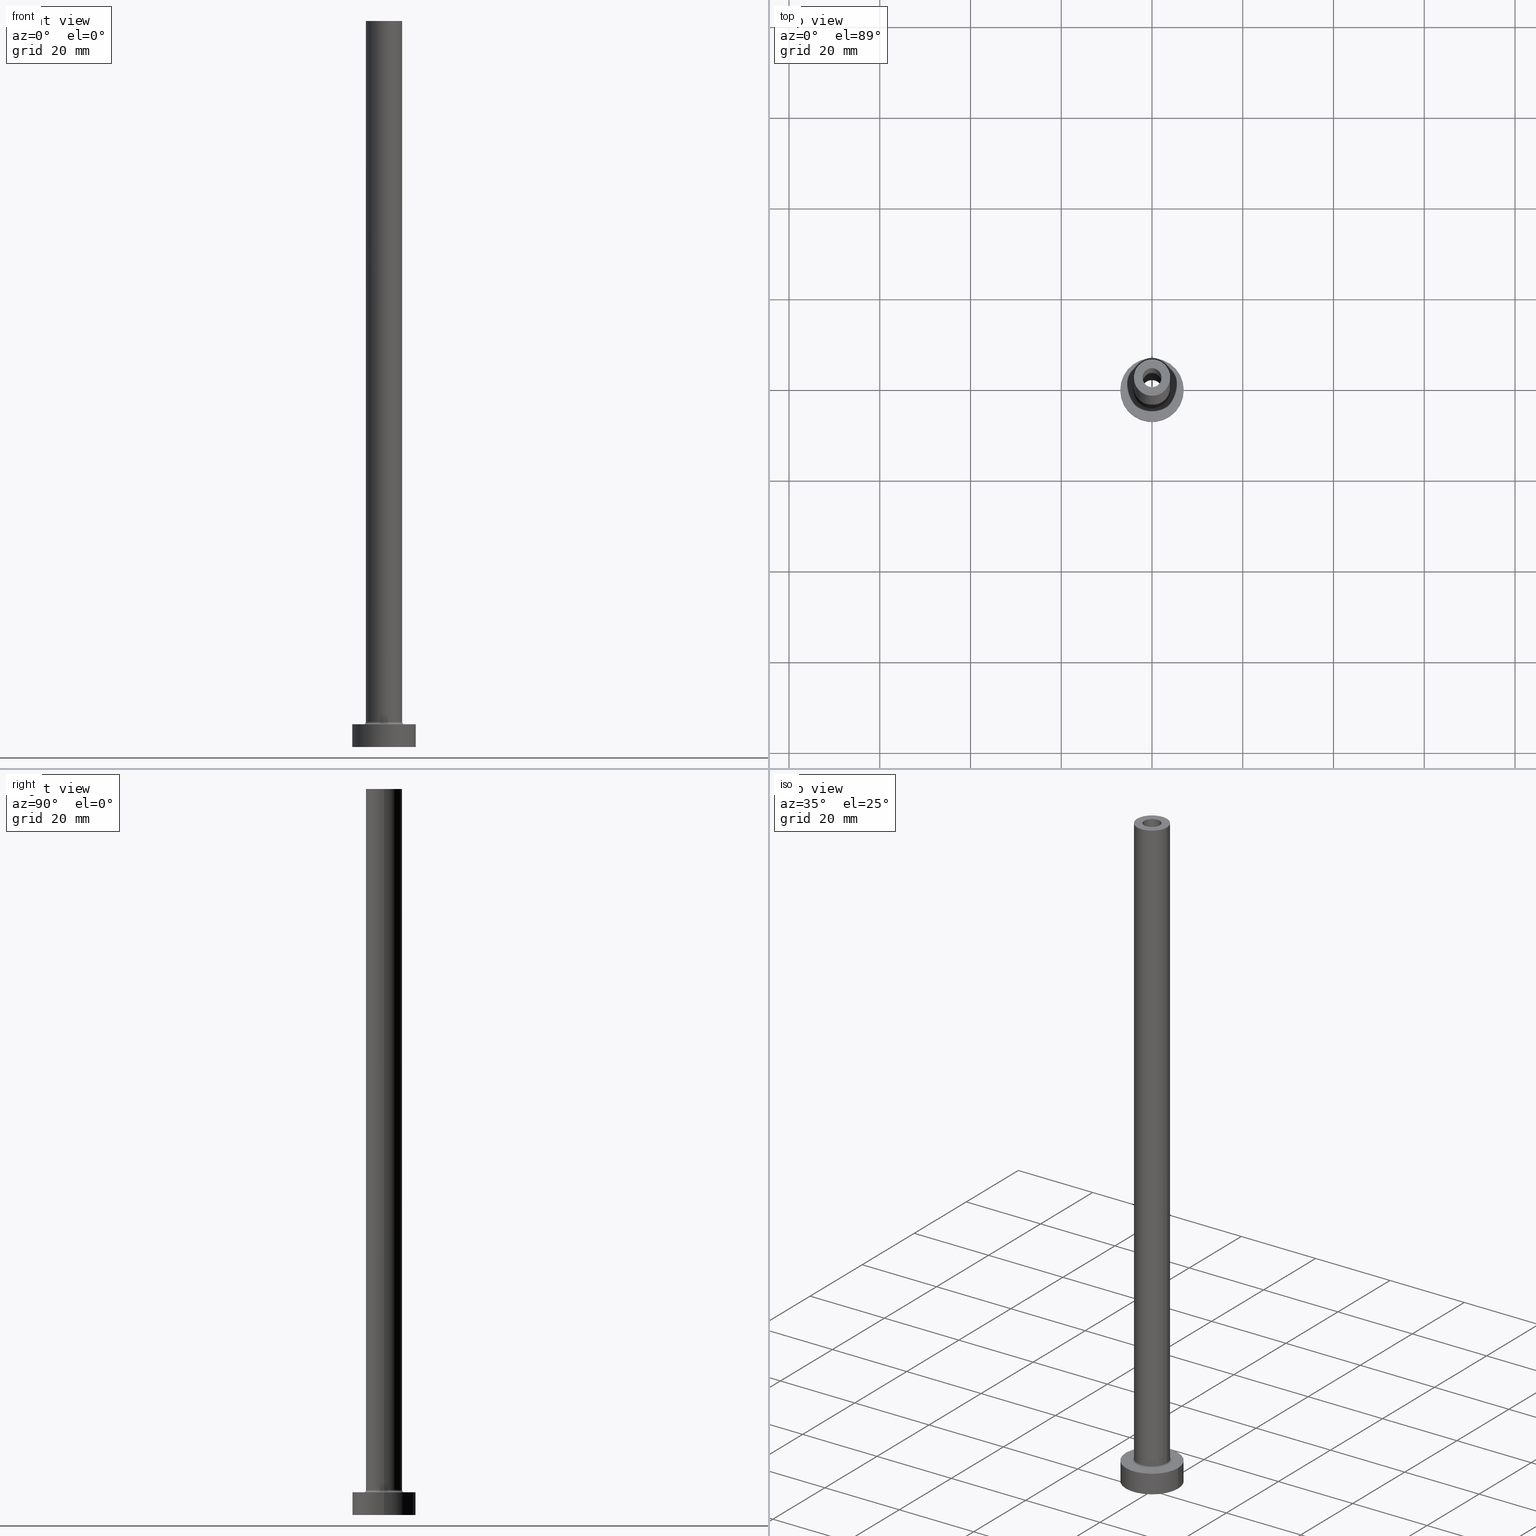
[diagram: canonical four-view strip — front | top / right | iso, engineering-drawing reading convention]
A machine part, canonical four-view strip (front | top / right | iso — engineering-drawing reading convention). The complete STEP part file that produces these views, byte-faithful:
ISO-10303-21;
HEADER;
FILE_DESCRIPTION (( 'STEP AP203' ),
    '1' );
FILE_NAME ('e7b2.STEP',
    '2023-02-13T17:33:14',
    ( '' ),
    ( '' ),
    'SwSTEP 2.0',
    'SolidWorks 2019',
    '' );
FILE_SCHEMA (( 'CONFIG_CONTROL_DESIGN' ));
ENDSEC;

DATA;
#1 = CARTESIAN_POINT ( 'NONE',  ( 0.000000000000000000, 0.000000000000000000, 5.500000000000005329 ) ) ;
#2 = DIRECTION ( 'NONE',  ( 1.000000000000000000, 0.000000000000000000, 0.000000000000000000 ) ) ;
#3 = CARTESIAN_POINT ( 'NONE',  ( 0.000000000000000000, 0.000000000000000000, 5.000000000000000000 ) ) ;
#4 = CIRCLE ( 'NONE', #395, 2.100000000000000089 ) ;
#5 = CARTESIAN_POINT ( 'NONE',  ( 2.100000000000000089, 2.571758278209441464E-16, 160.0000000000000000 ) ) ;
#6 = FACE_OUTER_BOUND ( 'NONE', #16, .T. ) ;
#7 = DIRECTION ( 'NONE',  ( 1.000000000000000000, 0.000000000000000000, -0.000000000000000000 ) ) ;
#8 = VERTEX_POINT ( 'NONE', #326 ) ;
#9 = ORIENTED_EDGE ( 'NONE', *, *, #154, .T. ) ;
#10 = ADVANCED_FACE ( 'NONE', ( #134 ), #350, .F. ) ;
#11 = AXIS2_PLACEMENT_3D ( 'NONE', #198, #375, #133 ) ;
#12 = APPROVAL_DATE_TIME ( #114, #325 ) ;
#13 = DIRECTION ( 'NONE',  ( -1.000000000000000000, 0.000000000000000000, 0.000000000000000000 ) ) ;
#14 = EDGE_CURVE ( 'NONE', #52, #228, #408, .T. ) ;
#15 = AXIS2_PLACEMENT_3D ( 'NONE', #124, #192, #25 ) ;
#16 = EDGE_LOOP ( 'NONE', ( #155, #44, #361, #365 ) ) ;
#17 = AXIS2_PLACEMENT_3D ( 'NONE', #33, #97, #265 ) ;
#18 = CARTESIAN_POINT ( 'NONE',  ( 0.000000000000000000, 0.000000000000000000, 5.000000000000000000 ) ) ;
#19 = LINE ( 'NONE', #299, #120 ) ;
#20 = UNCERTAINTY_MEASURE_WITH_UNIT (LENGTH_MEASURE( 1.000000000000000082E-05 ), #389, 'distance_accuracy_value', 'NONE');
#21 = CARTESIAN_POINT ( 'NONE',  ( 4.500000000000000888, 0.000000000000000000, 5.000000000000002665 ) ) ;
#22 = ORIENTED_EDGE ( 'NONE', *, *, #234, .T. ) ;
#23 = PLANE ( 'NONE',  #400 ) ;
#24 = CIRCLE ( 'NONE', #411, 4.000000000000000000 ) ;
#25 = DIRECTION ( 'NONE',  ( 1.000000000000000000, 0.000000000000000000, 0.000000000000000000 ) ) ;
#26 = ORIENTED_EDGE ( 'NONE', *, *, #106, .F. ) ;
#27 = CARTESIAN_POINT ( 'NONE',  ( 0.000000000000000000, 0.000000000000000000, 115.0000000000000000 ) ) ;
#28 = VERTEX_POINT ( 'NONE', #108 ) ;
#29 = CARTESIAN_POINT ( 'NONE',  ( -4.500000000000000888, 5.510910596163088569E-16, 5.000000000000002665 ) ) ;
#30 = ORIENTED_EDGE ( 'NONE', *, *, #110, .T. ) ;
#31 = CARTESIAN_POINT ( 'NONE',  ( 0.000000000000000000, 0.000000000000000000, 5.000000000000000000 ) ) ;
#32 = PRODUCT_DEFINITION ( 'NEZN�M�', '', #167, #263 ) ;
#33 = CARTESIAN_POINT ( 'NONE',  ( 0.000000000000000000, 0.000000000000000000, 115.0000000000000000 ) ) ;
#34 = DIRECTION ( 'NONE',  ( 1.000000000000000000, 0.000000000000000000, 0.000000000000000000 ) ) ;
#35 = ORIENTED_EDGE ( 'NONE', *, *, #119, .T. ) ;
#36 = DATE_AND_TIME ( #346, #237 ) ;
#37 = DIRECTION ( 'NONE',  ( -1.000000000000000000, 1.224646799147351482E-16, 0.000000000000000000 ) ) ;
#38 = EDGE_LOOP ( 'NONE', ( #417, #355, #353, #220 ) ) ;
#39 = EDGE_LOOP ( 'NONE', ( #438, #225 ) ) ;
#40 = DATE_TIME_ROLE ( 'classification_date' ) ;
#41 = APPROVAL ( #138, 'NEUR�EN�' ) ;
#42 = LINE ( 'NONE', #149, #195 ) ;
#43 = AXIS2_PLACEMENT_3D ( 'NONE', #173, #319, #461 ) ;
#44 = ORIENTED_EDGE ( 'NONE', *, *, #366, .T. ) ;
#45 = CARTESIAN_POINT ( 'NONE',  ( 0.000000000000000000, 0.000000000000000000, 0.000000000000000000 ) ) ;
#46 = ORIENTED_EDGE ( 'NONE', *, *, #154, .F. ) ;
#47 = PLANE ( 'NONE',  #423 ) ;
#48 = EDGE_CURVE ( 'NONE', #210, #318, #330, .T. ) ;
#49 = AXIS2_PLACEMENT_3D ( 'NONE', #3, #215, #396 ) ;
#50 =( GEOMETRIC_REPRESENTATION_CONTEXT ( 3 ) GLOBAL_UNCERTAINTY_ASSIGNED_CONTEXT ( ( #20 ) ) GLOBAL_UNIT_ASSIGNED_CONTEXT ( ( #389, #147, #109 ) ) REPRESENTATION_CONTEXT ( 'NONE', 'WORKASPACE' ) );
#51 = DIRECTION ( 'NONE',  ( -0.000000000000000000, -0.000000000000000000, -1.000000000000000000 ) ) ;
#52 = VERTEX_POINT ( 'NONE', #426 ) ;
#53 = ADVANCED_FACE ( 'NONE', ( #244 ), #452, .T. ) ;
#54 = PERSON_AND_ORGANIZATION ( #295, #56 ) ;
#55 = ORIENTED_EDGE ( 'NONE', *, *, #119, .F. ) ;
#56 = ORGANIZATION ( 'NEUR�EN�', 'NEUR�EN�', '' ) ;
#57 = LINE ( 'NONE', #92, #82 ) ;
#58 = CYLINDRICAL_SURFACE ( 'NONE', #105, 2.250000000000000000 ) ;
#59 = FACE_BOUND ( 'NONE', #246, .T. ) ;
#60 = CC_DESIGN_DATE_AND_TIME_ASSIGNMENT ( #36, #40, ( #204 ) ) ;
#61 = FACE_BOUND ( 'NONE', #407, .T. ) ;
#62 = CIRCLE ( 'NONE', #15, 7.000000000000000000 ) ;
#63 = DIRECTION ( 'NONE',  ( 1.000000000000000000, 0.000000000000000000, 0.000000000000000000 ) ) ;
#64 = EDGE_CURVE ( 'NONE', #269, #282, #453, .T. ) ;
#65 = CARTESIAN_POINT ( 'NONE',  ( 0.000000000000000000, 0.000000000000000000, 0.000000000000000000 ) ) ;
#66 = VERTEX_POINT ( 'NONE', #188 ) ;
#67 = APPLICATION_CONTEXT ( 'configuration controlled 3d designs of mechanical parts and assemblies' ) ;
#68 = DIRECTION ( 'NONE',  ( 0.000000000000000000, 0.000000000000000000, 1.000000000000000000 ) ) ;
#69 = SECURITY_CLASSIFICATION_LEVEL ( 'unclassified' ) ;
#70 = CIRCLE ( 'NONE', #178, 4.000000000000000000 ) ;
#71 = ORIENTED_EDGE ( 'NONE', *, *, #458, .T. ) ;
#72 = PRODUCT ( 'e7b2', 'e7b2', '', ( #145 ) ) ;
#73 = PERSON_AND_ORGANIZATION ( #295, #56 ) ;
#74 = EDGE_CURVE ( 'NONE', #78, #318, #19, .T. ) ;
#75 = DIRECTION ( 'NONE',  ( 1.000000000000000000, 0.000000000000000000, 0.000000000000000000 ) ) ;
#76 = EDGE_LOOP ( 'NONE', ( #35, #93 ) ) ;
#77 = PERSON_AND_ORGANIZATION ( #295, #56 ) ;
#78 = VERTEX_POINT ( 'NONE', #442 ) ;
#79 = DIRECTION ( 'NONE',  ( 0.000000000000000000, 0.000000000000000000, -1.000000000000000000 ) ) ;
#80 = CIRCLE ( 'NONE', #143, 0.5000000000000004441 ) ;
#81 = VERTEX_POINT ( 'NONE', #89 ) ;
#82 = VECTOR ( 'NONE', #338, 1000.000000000000000 ) ;
#83 = ADVANCED_FACE ( 'NONE', ( #369 ), #58, .F. ) ;
#84 = CARTESIAN_POINT ( 'NONE',  ( 2.100000000000000089, 2.571758278209441464E-16, 115.0000000000000000 ) ) ;
#85 = DIRECTION ( 'NONE',  ( 1.000000000000000000, 0.000000000000000000, -0.000000000000000000 ) ) ;
#86 = AXIS2_PLACEMENT_3D ( 'NONE', #163, #233, #409 ) ;
#87 = CARTESIAN_POINT ( 'NONE',  ( 0.000000000000000000, 0.000000000000000000, 160.0000000000000000 ) ) ;
#88 = APPLICATION_CONTEXT ( 'configuration controlled 3d designs of mechanical parts and assemblies' ) ;
#89 = CARTESIAN_POINT ( 'NONE',  ( -7.000000000000000000, 0.000000000000000000, 5.000000000000000000 ) ) ;
#90 = AXIS2_PLACEMENT_3D ( 'NONE', #309, #454, #371 ) ;
#91 = CARTESIAN_POINT ( 'NONE',  ( 4.000000000000000000, 4.898587196589412829E-16, 160.0000000000000000 ) ) ;
#92 = CARTESIAN_POINT ( 'NONE',  ( 2.250000000000000000, 2.755455298081544285E-16, 121.3639610306789365 ) ) ;
#93 = ORIENTED_EDGE ( 'NONE', *, *, #171, .T. ) ;
#94 = CYLINDRICAL_SURFACE ( 'NONE', #11, 4.000000000000000000 ) ;
#95 = CC_DESIGN_DATE_AND_TIME_ASSIGNMENT ( #391, #293, ( #32 ) ) ;
#96 = AXIS2_PLACEMENT_3D ( 'NONE', #413, #450, #307 ) ;
#97 = DIRECTION ( 'NONE',  ( 0.000000000000000000, 0.000000000000000000, 1.000000000000000000 ) ) ;
#98 = DIRECTION ( 'NONE',  ( 0.000000000000000000, 0.000000000000000000, 1.000000000000000000 ) ) ;
#99 = DIRECTION ( 'NONE',  ( -0.000000000000000000, -0.000000000000000000, -1.000000000000000000 ) ) ;
#100 = EDGE_LOOP ( 'NONE', ( #266, #30, #226, #382 ) ) ;
#101 = DIRECTION ( 'NONE',  ( 1.000000000000000000, 0.000000000000000000, 0.000000000000000000 ) ) ;
#102 = CARTESIAN_POINT ( 'NONE',  ( 0.000000000000000000, 0.000000000000000000, 160.0000000000000000 ) ) ;
#103 = APPROVAL_ROLE ( '' ) ;
#104 = ORIENTED_EDGE ( 'NONE', *, *, #140, .F. ) ;
#105 = AXIS2_PLACEMENT_3D ( 'NONE', #122, #261, #13 ) ;
#106 = EDGE_CURVE ( 'NONE', #401, #377, #156, .T. ) ;
#107 = CALENDAR_DATE ( 2023, 13, 2 ) ;
#108 = CARTESIAN_POINT ( 'NONE',  ( -4.000000000000000000, 0.000000000000000000, 160.0000000000000000 ) ) ;
#109 =( NAMED_UNIT ( * ) SI_UNIT ( $, .STERADIAN. ) SOLID_ANGLE_UNIT ( ) );
#110 = EDGE_CURVE ( 'NONE', #8, #401, #80, .T. ) ;
#111 = EDGE_LOOP ( 'NONE', ( #104, #22, #207, #340 ) ) ;
#112 = CC_DESIGN_APPROVAL ( #41, ( #32 ) ) ;
#113 = COORDINATED_UNIVERSAL_TIME_OFFSET ( 1, 0, .AHEAD. ) ;
#114 = DATE_AND_TIME ( #440, #332 ) ;
#115 = VERTEX_POINT ( 'NONE', #460 ) ;
#116 = CC_DESIGN_PERSON_AND_ORGANIZATION_ASSIGNMENT ( #73, #425, ( #72 ) ) ;
#117 = AXIS2_PLACEMENT_3D ( 'NONE', #102, #193, #313 ) ;
#118 = CARTESIAN_POINT ( 'NONE',  ( 0.000000000000000000, 0.000000000000000000, 115.0000000000000000 ) ) ;
#119 = EDGE_CURVE ( 'NONE', #28, #247, #24, .T. ) ;
#120 = VECTOR ( 'NONE', #298, 1000.000000000000000 ) ;
#121 = CARTESIAN_POINT ( 'NONE',  ( 0.000000000000000000, 0.000000000000000000, 160.0000000000000000 ) ) ;
#122 = CARTESIAN_POINT ( 'NONE',  ( 0.000000000000000000, 0.000000000000000000, 121.3639610306789365 ) ) ;
#123 = APPROVAL_PERSON_ORGANIZATION ( #77, #393, #103 ) ;
#124 = CARTESIAN_POINT ( 'NONE',  ( 0.000000000000000000, 0.000000000000000000, 0.000000000000000000 ) ) ;
#125 = DIRECTION ( 'NONE',  ( 0.000000000000000000, 0.000000000000000000, 1.000000000000000000 ) ) ;
#126 = ORIENTED_EDGE ( 'NONE', *, *, #366, .F. ) ;
#127 = DIRECTION ( 'NONE',  ( -0.000000000000000000, -0.000000000000000000, -1.000000000000000000 ) ) ;
#128 = AXIS2_PLACEMENT_3D ( 'NONE', #241, #320, #288 ) ;
#129 = EDGE_CURVE ( 'NONE', #81, #418, #284, .T. ) ;
#130 = DIRECTION ( 'NONE',  ( 0.000000000000000000, 0.000000000000000000, 1.000000000000000000 ) ) ;
#131 = DIRECTION ( 'NONE',  ( -1.000000000000000000, 0.000000000000000000, 0.000000000000000000 ) ) ;
#132 = DIRECTION ( 'NONE',  ( -0.000000000000000000, -0.000000000000000000, -1.000000000000000000 ) ) ;
#133 = DIRECTION ( 'NONE',  ( -1.000000000000000000, 0.000000000000000000, 0.000000000000000000 ) ) ;
#134 = FACE_OUTER_BOUND ( 'NONE', #100, .T. ) ;
#135 = ORIENTED_EDGE ( 'NONE', *, *, #140, .T. ) ;
#136 = DIRECTION ( 'NONE',  ( 0.000000000000000000, 0.000000000000000000, 1.000000000000000000 ) ) ;
#137 = ORIENTED_EDGE ( 'NONE', *, *, #362, .T. ) ;
#138 = APPROVAL_STATUS ( 'not_yet_approved' ) ;
#139 = DIRECTION ( 'NONE',  ( 1.000000000000000000, 0.000000000000000000, 0.000000000000000000 ) ) ;
#140 = EDGE_CURVE ( 'NONE', #418, #81, #217, .T. ) ;
#141 = PERSON_AND_ORGANIZATION ( #295, #56 ) ;
#142 = LINE ( 'NONE', #283, #321 ) ;
#143 = AXIS2_PLACEMENT_3D ( 'NONE', #206, #347, #37 ) ;
#144 = VECTOR ( 'NONE', #79, 1000.000000000000000 ) ;
#145 = MECHANICAL_CONTEXT ( 'NONE', #67, 'mechanical' ) ;
#146 = PLANE ( 'NONE',  #356 ) ;
#147 =( NAMED_UNIT ( * ) PLANE_ANGLE_UNIT ( ) SI_UNIT ( $, .RADIAN. ) );
#148 = ADVANCED_FACE ( 'NONE', ( #280 ), #272, .F. ) ;
#149 = CARTESIAN_POINT ( 'NONE',  ( 7.000000000000000000, 8.572527594031473190E-16, 5.000000000000000000 ) ) ;
#150 = EDGE_LOOP ( 'NONE', ( #300, #236 ) ) ;
#151 = CALENDAR_DATE ( 2023, 13, 2 ) ;
#152 = AXIS2_PLACEMENT_3D ( 'NONE', #431, #182, #289 ) ;
#153 = AXIS2_PLACEMENT_3D ( 'NONE', #317, #386, #34 ) ;
#154 = EDGE_CURVE ( 'NONE', #314, #8, #403, .T. ) ;
#155 = ORIENTED_EDGE ( 'NONE', *, *, #458, .F. ) ;
#156 = CIRCLE ( 'NONE', #294, 4.500000000000000888 ) ;
#157 = EDGE_CURVE ( 'NONE', #115, #329, #62, .T. ) ;
#158 = ORIENTED_EDGE ( 'NONE', *, *, #14, .F. ) ;
#159 = DIRECTION ( 'NONE',  ( -1.000000000000000000, 0.000000000000000000, 0.000000000000000000 ) ) ;
#160 = DIRECTION ( 'NONE',  ( 0.000000000000000000, 0.000000000000000000, -1.000000000000000000 ) ) ;
#161 = AXIS2_PLACEMENT_3D ( 'NONE', #203, #285, #242 ) ;
#162 = AXIS2_PLACEMENT_3D ( 'NONE', #65, #260, #63 ) ;
#163 = CARTESIAN_POINT ( 'NONE',  ( 0.000000000000000000, 0.000000000000000000, 160.0000000000000000 ) ) ;
#164 = CARTESIAN_POINT ( 'NONE',  ( 4.000000000000000000, 4.898587196589412829E-16, 5.500000000000005329 ) ) ;
#165 = EDGE_LOOP ( 'NONE', ( #333, #158 ) ) ;
#166 = CARTESIAN_POINT ( 'NONE',  ( 2.250000000000000000, 2.755455298081544285E-16, 115.0000000000000000 ) ) ;
#167 = PRODUCT_DEFINITION_FORMATION_WITH_SPECIFIED_SOURCE ( 'LIBOVOLN�', '', #72, .NOT_KNOWN. ) ;
#168 = DIRECTION ( 'NONE',  ( 0.000000000000000000, 0.000000000000000000, 1.000000000000000000 ) ) ;
#169 = LINE ( 'NONE', #214, #305 ) ;
#170 = DIRECTION ( 'NONE',  ( 0.000000000000000000, 0.000000000000000000, -1.000000000000000000 ) ) ;
#171 = EDGE_CURVE ( 'NONE', #247, #28, #259, .T. ) ;
#172 = COORDINATED_UNIVERSAL_TIME_OFFSET ( 1, 0, .AHEAD. ) ;
#173 = CARTESIAN_POINT ( 'NONE',  ( 0.000000000000000000, 0.000000000000000000, 5.000000000000000000 ) ) ;
#174 = CARTESIAN_POINT ( 'NONE',  ( 0.000000000000000000, 0.000000000000000000, 0.000000000000000000 ) ) ;
#175 = DIRECTION ( 'NONE',  ( 1.000000000000000000, 0.000000000000000000, 0.000000000000000000 ) ) ;
#176 = ORIENTED_EDGE ( 'NONE', *, *, #249, .T. ) ;
#177 = ADVANCED_FACE ( 'NONE', ( #348 ), #279, .T. ) ;
#178 = AXIS2_PLACEMENT_3D ( 'NONE', #240, #238, #354 ) ;
#179 = DIRECTION ( 'NONE',  ( 0.000000000000000000, 0.000000000000000000, 1.000000000000000000 ) ) ;
#180 = ORIENTED_EDGE ( 'NONE', *, *, #331, .F. ) ;
#181 = CARTESIAN_POINT ( 'NONE',  ( 0.000000000000000000, 0.000000000000000000, 0.000000000000000000 ) ) ;
#182 = DIRECTION ( 'NONE',  ( 0.000000000000000000, 0.000000000000000000, 1.000000000000000000 ) ) ;
#183 = CC_DESIGN_APPROVAL ( #393, ( #167 ) ) ;
#184 = DIRECTION ( 'NONE',  ( 1.000000000000000000, 0.000000000000000000, 0.000000000000000000 ) ) ;
#185 = EDGE_CURVE ( 'NONE', #28, #8, #142, .T. ) ;
#186 = EDGE_LOOP ( 'NONE', ( #224, #419, #291, #137 ) ) ;
#187 = ADVANCED_FACE ( 'NONE', ( #211, #352 ), #146, .T. ) ;
#188 = CARTESIAN_POINT ( 'NONE',  ( 2.100000000000000089, 2.571758278209441464E-16, 160.0000000000000000 ) ) ;
#189 = CIRCLE ( 'NONE', #360, 4.500000000000000888 ) ;
#190 = FACE_OUTER_BOUND ( 'NONE', #39, .T. ) ;
#191 = CARTESIAN_POINT ( 'NONE',  ( 0.000000000000000000, 0.000000000000000000, 121.3639610306789365 ) ) ;
#192 = DIRECTION ( 'NONE',  ( 0.000000000000000000, 0.000000000000000000, 1.000000000000000000 ) ) ;
#193 = DIRECTION ( 'NONE',  ( 0.000000000000000000, 0.000000000000000000, -1.000000000000000000 ) ) ;
#194 = EDGE_LOOP ( 'NONE', ( #364, #71, #180, #381 ) ) ;
#195 = VECTOR ( 'NONE', #254, 1000.000000000000000 ) ;
#196 = EDGE_CURVE ( 'NONE', #377, #401, #189, .T. ) ;
#197 = DIRECTION ( 'NONE',  ( 0.000000000000000000, 0.000000000000000000, 1.000000000000000000 ) ) ;
#198 = CARTESIAN_POINT ( 'NONE',  ( 0.000000000000000000, 0.000000000000000000, 160.0000000000000000 ) ) ;
#199 = ADVANCED_FACE ( 'NONE', ( #358, #439 ), #47, .F. ) ;
#200 = DATE_AND_TIME ( #107, #387 ) ;
#201 = EDGE_LOOP ( 'NONE', ( #212, #451, #176, #392 ) ) ;
#202 = AXIS2_PLACEMENT_3D ( 'NONE', #405, #130, #335 ) ;
#203 = CARTESIAN_POINT ( 'NONE',  ( 0.000000000000000000, 0.000000000000000000, 5.500000000000005329 ) ) ;
#204 = SECURITY_CLASSIFICATION ( '', '', #69 ) ;
#205 = COORDINATED_UNIVERSAL_TIME_OFFSET ( 1, 0, .AHEAD. ) ;
#206 = CARTESIAN_POINT ( 'NONE',  ( -4.500000000000000888, 5.510910596163089556E-16, 5.500000000000005329 ) ) ;
#207 = ORIENTED_EDGE ( 'NONE', *, *, #157, .T. ) ;
#208 = PERSON_AND_ORGANIZATION ( #295, #56 ) ;
#209 = DIRECTION ( 'NONE',  ( 0.000000000000000000, 0.000000000000000000, 1.000000000000000000 ) ) ;
#210 = VERTEX_POINT ( 'NONE', #84 ) ;
#211 = FACE_BOUND ( 'NONE', #232, .T. ) ;
#212 = ORIENTED_EDGE ( 'NONE', *, *, #296, .F. ) ;
#213 = ADVANCED_FACE ( 'NONE', ( #218 ), #250, .T. ) ;
#214 = CARTESIAN_POINT ( 'NONE',  ( -7.000000000000000000, 0.000000000000000000, 5.000000000000000000 ) ) ;
#215 = DIRECTION ( 'NONE',  ( 0.000000000000000000, 0.000000000000000000, 1.000000000000000000 ) ) ;
#216 = ORIENTED_EDGE ( 'NONE', *, *, #185, .T. ) ;
#217 = CIRCLE ( 'NONE', #152, 7.000000000000000000 ) ;
#218 = FACE_OUTER_BOUND ( 'NONE', #186, .T. ) ;
#219 = LINE ( 'NONE', #327, #144 ) ;
#220 = ORIENTED_EDGE ( 'NONE', *, *, #249, .F. ) ;
#221 = CYLINDRICAL_SURFACE ( 'NONE', #117, 2.100000000000000089 ) ;
#222 = APPROVAL_STATUS ( 'not_yet_approved' ) ;
#223 = DIRECTION ( 'NONE',  ( 1.000000000000000000, 0.000000000000000000, 0.000000000000000000 ) ) ;
#224 = ORIENTED_EDGE ( 'NONE', *, *, #234, .F. ) ;
#225 = ORIENTED_EDGE ( 'NONE', *, *, #264, .F. ) ;
#226 = ORIENTED_EDGE ( 'NONE', *, *, #196, .F. ) ;
#227 = CARTESIAN_POINT ( 'NONE',  ( 7.000000000000000000, 8.572527594031473190E-16, 5.000000000000000000 ) ) ;
#228 = VERTEX_POINT ( 'NONE', #390 ) ;
#229 = CARTESIAN_POINT ( 'NONE',  ( 0.000000000000000000, 0.000000000000000000, 5.000000000000000000 ) ) ;
#230 = EDGE_CURVE ( 'NONE', #81, #329, #169, .T. ) ;
#231 = PLANE ( 'NONE',  #202 ) ;
#232 = EDGE_LOOP ( 'NONE', ( #370, #126 ) ) ;
#233 = DIRECTION ( 'NONE',  ( 0.000000000000000000, 0.000000000000000000, -1.000000000000000000 ) ) ;
#234 = EDGE_CURVE ( 'NONE', #418, #115, #42, .T. ) ;
#235 = PERSON_AND_ORGANIZATION_ROLE ( 'creator' ) ;
#236 = ORIENTED_EDGE ( 'NONE', *, *, #157, .F. ) ;
#237 = LOCAL_TIME ( 18, 33, 14.00000000000000000, #205 ) ;
#238 = DIRECTION ( 'NONE',  ( 0.000000000000000000, 0.000000000000000000, 1.000000000000000000 ) ) ;
#239 = VECTOR ( 'NONE', #170, 1000.000000000000000 ) ;
#240 = CARTESIAN_POINT ( 'NONE',  ( 0.000000000000000000, 0.000000000000000000, 5.500000000000005329 ) ) ;
#241 = CARTESIAN_POINT ( 'NONE',  ( 0.000000000000000000, 0.000000000000000000, 115.0000000000000000 ) ) ;
#242 = DIRECTION ( 'NONE',  ( 1.000000000000000000, 0.000000000000000000, 0.000000000000000000 ) ) ;
#243 = CALENDAR_DATE ( 2023, 13, 2 ) ;
#244 = FACE_OUTER_BOUND ( 'NONE', #394, .T. ) ;
#245 = AXIS2_PLACEMENT_3D ( 'NONE', #87, #127, #131 ) ;
#246 = EDGE_LOOP ( 'NONE', ( #276, #312 ) ) ;
#247 = VERTEX_POINT ( 'NONE', #398 ) ;
#248 = AXIS2_PLACEMENT_3D ( 'NONE', #174, #68, #2 ) ;
#249 = EDGE_CURVE ( 'NONE', #269, #228, #219, .T. ) ;
#250 = CYLINDRICAL_SURFACE ( 'NONE', #432, 7.000000000000000000 ) ;
#251 = APPROVAL_ROLE ( '' ) ;
#252 = DIRECTION ( 'NONE',  ( 0.000000000000000000, 0.000000000000000000, 1.000000000000000000 ) ) ;
#253 = SHAPE_DEFINITION_REPRESENTATION ( #435, #406 ) ;
#254 = DIRECTION ( 'NONE',  ( -0.000000000000000000, -0.000000000000000000, -1.000000000000000000 ) ) ;
#255 = ORIENTED_EDGE ( 'NONE', *, *, #415, .T. ) ;
#256 = AXIS2_PLACEMENT_3D ( 'NONE', #373, #197, #342 ) ;
#257 = ADVANCED_FACE ( 'NONE', ( #6 ), #221, .F. ) ;
#258 = DIRECTION ( 'NONE',  ( 0.000000000000000000, 0.000000000000000000, 1.000000000000000000 ) ) ;
#259 = CIRCLE ( 'NONE', #420, 4.000000000000000000 ) ;
#260 = DIRECTION ( 'NONE',  ( 0.000000000000000000, 0.000000000000000000, 1.000000000000000000 ) ) ;
#261 = DIRECTION ( 'NONE',  ( 0.000000000000000000, 0.000000000000000000, -1.000000000000000000 ) ) ;
#262 = CIRCLE ( 'NONE', #256, 2.100000000000000089 ) ;
#263 = DESIGN_CONTEXT ( 'detailed design', #88, 'design' ) ;
#264 = EDGE_CURVE ( 'NONE', #282, #269, #328, .T. ) ;
#265 = DIRECTION ( 'NONE',  ( 1.000000000000000000, 0.000000000000000000, 0.000000000000000000 ) ) ;
#266 = ORIENTED_EDGE ( 'NONE', *, *, #449, .F. ) ;
#267 = AXIS2_PLACEMENT_3D ( 'NONE', #45, #99, #457 ) ;
#268 = FACE_OUTER_BOUND ( 'NONE', #201, .T. ) ;
#269 = VERTEX_POINT ( 'NONE', #343 ) ;
#270 = DIRECTION ( 'NONE',  ( -0.000000000000000000, -0.000000000000000000, -1.000000000000000000 ) ) ;
#271 = EDGE_LOOP ( 'NONE', ( #349, #55, #216, #278 ) ) ;
#272 = TOROIDAL_SURFACE ( 'NONE', #303, 4.500000000000000888, 0.5000000000000000000 ) ;
#273 = EDGE_CURVE ( 'NONE', #228, #52, #446, .T. ) ;
#274 = CIRCLE ( 'NONE', #345, 2.100000000000000089 ) ;
#275 = DIRECTION ( 'NONE',  ( 1.000000000000000000, 0.000000000000000000, 0.000000000000000000 ) ) ;
#276 = ORIENTED_EDGE ( 'NONE', *, *, #196, .T. ) ;
#277 = APPROVAL_ROLE ( '' ) ;
#278 = ORIENTED_EDGE ( 'NONE', *, *, #449, .T. ) ;
#279 = CYLINDRICAL_SURFACE ( 'NONE', #43, 7.000000000000000000 ) ;
#280 = FACE_OUTER_BOUND ( 'NONE', #372, .T. ) ;
#281 = PERSON_AND_ORGANIZATION_ROLE ( 'creator' ) ;
#282 = VERTEX_POINT ( 'NONE', #166 ) ;
#283 = CARTESIAN_POINT ( 'NONE',  ( -4.000000000000000000, 0.000000000000000000, 160.0000000000000000 ) ) ;
#284 = CIRCLE ( 'NONE', #49, 7.000000000000000000 ) ;
#285 = DIRECTION ( 'NONE',  ( 0.000000000000000000, 0.000000000000000000, 1.000000000000000000 ) ) ;
#286 = DIRECTION ( 'NONE',  ( -1.000000000000000000, 0.000000000000000000, 0.000000000000000000 ) ) ;
#287 = PERSON_AND_ORGANIZATION ( #295, #56 ) ;
#288 = DIRECTION ( 'NONE',  ( 1.000000000000000000, 0.000000000000000000, 0.000000000000000000 ) ) ;
#289 = DIRECTION ( 'NONE',  ( 1.000000000000000000, 0.000000000000000000, 0.000000000000000000 ) ) ;
#290 = APPLICATION_PROTOCOL_DEFINITION ( 'international standard', 'config_control_design', 1994, #88 ) ;
#291 = ORIENTED_EDGE ( 'NONE', *, *, #230, .T. ) ;
#292 = CC_DESIGN_SECURITY_CLASSIFICATION ( #204, ( #167 ) ) ;
#293 = DATE_TIME_ROLE ( 'creation_date' ) ;
#294 = AXIS2_PLACEMENT_3D ( 'NONE', #18, #385, #139 ) ;
#295 = PERSON ( 'NEUR�EN�', 'NEUR�EN�', 'NEUR�EN�', ('NEUR�EN�'), ('NEUR�EN�'), ('NEUR�EN�') ) ;
#296 = EDGE_CURVE ( 'NONE', #282, #52, #57, .T. ) ;
#297 = ORIENTED_EDGE ( 'NONE', *, *, #185, .F. ) ;
#298 = DIRECTION ( 'NONE',  ( 0.000000000000000000, 0.000000000000000000, -1.000000000000000000 ) ) ;
#299 = CARTESIAN_POINT ( 'NONE',  ( -2.100000000000000089, 0.000000000000000000, 160.0000000000000000 ) ) ;
#300 = ORIENTED_EDGE ( 'NONE', *, *, #362, .F. ) ;
#301 = FACE_OUTER_BOUND ( 'NONE', #194, .T. ) ;
#302 = PRODUCT_RELATED_PRODUCT_CATEGORY ( 'detail', '', ( #72 ) ) ;
#303 = AXIS2_PLACEMENT_3D ( 'NONE', #1, #168, #101 ) ;
#304 = CYLINDRICAL_SURFACE ( 'NONE', #376, 2.250000000000000000 ) ;
#305 = VECTOR ( 'NONE', #399, 1000.000000000000000 ) ;
#306 = ORIENTED_EDGE ( 'NONE', *, *, #331, .T. ) ;
#307 = DIRECTION ( 'NONE',  ( 0.000000000000000000, 0.000000000000000000, -1.000000000000000000 ) ) ;
#308 = CC_DESIGN_PERSON_AND_ORGANIZATION_ASSIGNMENT ( #430, #235, ( #167 ) ) ;
#309 = CARTESIAN_POINT ( 'NONE',  ( 0.000000000000000000, 0.000000000000000000, 0.000000000000000000 ) ) ;
#310 = ORIENTED_EDGE ( 'NONE', *, *, #48, .T. ) ;
#311 = CARTESIAN_POINT ( 'NONE',  ( 0.000000000000000000, 0.000000000000000000, 160.0000000000000000 ) ) ;
#312 = ORIENTED_EDGE ( 'NONE', *, *, #106, .T. ) ;
#313 = DIRECTION ( 'NONE',  ( -1.000000000000000000, 0.000000000000000000, 0.000000000000000000 ) ) ;
#314 = VERTEX_POINT ( 'NONE', #164 ) ;
#315 = LOCAL_TIME ( 18, 33, 14.00000000000000000, #416 ) ;
#316 = LINE ( 'NONE', #5, #239 ) ;
#317 = CARTESIAN_POINT ( 'NONE',  ( 0.000000000000000000, 0.000000000000000000, 5.500000000000005329 ) ) ;
#318 = VERTEX_POINT ( 'NONE', #378 ) ;
#319 = DIRECTION ( 'NONE',  ( -0.000000000000000000, -0.000000000000000000, -1.000000000000000000 ) ) ;
#320 = DIRECTION ( 'NONE',  ( 0.000000000000000000, 0.000000000000000000, 1.000000000000000000 ) ) ;
#321 = VECTOR ( 'NONE', #424, 1000.000000000000000 ) ;
#322 = CIRCLE ( 'NONE', #162, 7.000000000000000000 ) ;
#323 = APPLICATION_PROTOCOL_DEFINITION ( 'international standard', 'config_control_design', 1994, #67 ) ;
#324 = APPROVAL_DATE_TIME ( #429, #41 ) ;
#325 = APPROVAL ( #222, 'NEUR�EN�' ) ;
#326 = CARTESIAN_POINT ( 'NONE',  ( -4.000000000000000000, 0.000000000000000000, 5.500000000000005329 ) ) ;
#327 = CARTESIAN_POINT ( 'NONE',  ( -2.250000000000000000, 0.000000000000000000, 121.3639610306789365 ) ) ;
#328 = CIRCLE ( 'NONE', #17, 2.250000000000000000 ) ;
#329 = VERTEX_POINT ( 'NONE', #455 ) ;
#330 = CIRCLE ( 'NONE', #128, 2.100000000000000089 ) ;
#331 = EDGE_CURVE ( 'NONE', #318, #210, #274, .T. ) ;
#332 = LOCAL_TIME ( 18, 33, 14.00000000000000000, #113 ) ;
#333 = ORIENTED_EDGE ( 'NONE', *, *, #273, .F. ) ;
#334 = CIRCLE ( 'NONE', #96, 0.5000000000000004441 ) ;
#335 = DIRECTION ( 'NONE',  ( 1.000000000000000000, 0.000000000000000000, -0.000000000000000000 ) ) ;
#336 = APPROVAL_PERSON_ORGANIZATION ( #54, #325, #251 ) ;
#337 = FACE_OUTER_BOUND ( 'NONE', #433, .T. ) ;
#338 = DIRECTION ( 'NONE',  ( 0.000000000000000000, 0.000000000000000000, -1.000000000000000000 ) ) ;
#339 = APPROVAL_PERSON_ORGANIZATION ( #287, #41, #277 ) ;
#340 = ORIENTED_EDGE ( 'NONE', *, *, #230, .F. ) ;
#341 = EDGE_CURVE ( 'NONE', #314, #377, #334, .T. ) ;
#342 = DIRECTION ( 'NONE',  ( 1.000000000000000000, 0.000000000000000000, 0.000000000000000000 ) ) ;
#343 = CARTESIAN_POINT ( 'NONE',  ( -2.250000000000000000, 0.000000000000000000, 115.0000000000000000 ) ) ;
#344 = PERSON_AND_ORGANIZATION ( #295, #56 ) ;
#345 = AXIS2_PLACEMENT_3D ( 'NONE', #27, #136, #275 ) ;
#346 = CALENDAR_DATE ( 2023, 13, 2 ) ;
#347 = DIRECTION ( 'NONE',  ( 1.224646799147353207E-16, 1.000000000000000000, -0.000000000000000000 ) ) ;
#348 = FACE_OUTER_BOUND ( 'NONE', #111, .T. ) ;
#349 = ORIENTED_EDGE ( 'NONE', *, *, #415, .F. ) ;
#350 = TOROIDAL_SURFACE ( 'NONE', #153, 4.500000000000000888, 0.5000000000000000000 ) ;
#351 = APPROVAL_STATUS ( 'not_yet_approved' ) ;
#352 = FACE_OUTER_BOUND ( 'NONE', #76, .T. ) ;
#353 = ORIENTED_EDGE ( 'NONE', *, *, #14, .T. ) ;
#354 = DIRECTION ( 'NONE',  ( 1.000000000000000000, 0.000000000000000000, 0.000000000000000000 ) ) ;
#355 = ORIENTED_EDGE ( 'NONE', *, *, #296, .T. ) ;
#356 = AXIS2_PLACEMENT_3D ( 'NONE', #434, #179, #85 ) ;
#357 = CC_DESIGN_PERSON_AND_ORGANIZATION_ASSIGNMENT ( #344, #421, ( #204 ) ) ;
#358 = FACE_BOUND ( 'NONE', #165, .T. ) ;
#359 = CARTESIAN_POINT ( 'NONE',  ( 0.000000000000000000, 0.000000000000000000, 5.000000000000000000 ) ) ;
#360 = AXIS2_PLACEMENT_3D ( 'NONE', #359, #51, #184 ) ;
#361 = ORIENTED_EDGE ( 'NONE', *, *, #74, .T. ) ;
#362 = EDGE_CURVE ( 'NONE', #329, #115, #322, .T. ) ;
#363 = AXIS2_PLACEMENT_3D ( 'NONE', #118, #258, #223 ) ;
#364 = ORIENTED_EDGE ( 'NONE', *, *, #436, .T. ) ;
#365 = ORIENTED_EDGE ( 'NONE', *, *, #48, .F. ) ;
#366 = EDGE_CURVE ( 'NONE', #66, #78, #4, .T. ) ;
#367 = LOCAL_TIME ( 18, 33, 14.00000000000000000, #384 ) ;
#368 = DIRECTION ( 'NONE',  ( 1.000000000000000000, 0.000000000000000000, 0.000000000000000000 ) ) ;
#369 = FACE_OUTER_BOUND ( 'NONE', #38, .T. ) ;
#370 = ORIENTED_EDGE ( 'NONE', *, *, #436, .F. ) ;
#371 = DIRECTION ( 'NONE',  ( 1.000000000000000000, 0.000000000000000000, 0.000000000000000000 ) ) ;
#372 = EDGE_LOOP ( 'NONE', ( #414, #46, #379, #26 ) ) ;
#373 = CARTESIAN_POINT ( 'NONE',  ( 0.000000000000000000, 0.000000000000000000, 160.0000000000000000 ) ) ;
#374 = ADVANCED_FACE ( 'NONE', ( #61, #190 ), #231, .F. ) ;
#375 = DIRECTION ( 'NONE',  ( -0.000000000000000000, -0.000000000000000000, -1.000000000000000000 ) ) ;
#376 = AXIS2_PLACEMENT_3D ( 'NONE', #191, #160, #159 ) ;
#377 = VERTEX_POINT ( 'NONE', #21 ) ;
#378 = CARTESIAN_POINT ( 'NONE',  ( -2.100000000000000089, 0.000000000000000000, 115.0000000000000000 ) ) ;
#379 = ORIENTED_EDGE ( 'NONE', *, *, #341, .T. ) ;
#380 = PERSON_AND_ORGANIZATION_ROLE ( 'design_supplier' ) ;
#381 = ORIENTED_EDGE ( 'NONE', *, *, #74, .F. ) ;
#382 = ORIENTED_EDGE ( 'NONE', *, *, #341, .F. ) ;
#383 = ADVANCED_FACE ( 'NONE', ( #268 ), #304, .F. ) ;
#384 = COORDINATED_UNIVERSAL_TIME_OFFSET ( 1, 0, .AHEAD. ) ;
#385 = DIRECTION ( 'NONE',  ( -0.000000000000000000, -0.000000000000000000, -1.000000000000000000 ) ) ;
#386 = DIRECTION ( 'NONE',  ( 0.000000000000000000, 0.000000000000000000, 1.000000000000000000 ) ) ;
#387 = LOCAL_TIME ( 18, 33, 14.00000000000000000, #172 ) ;
#388 = MANIFOLD_SOLID_BREP ( 'Odebrat vysunut�m4', #437 ) ;
#389 =( LENGTH_UNIT ( ) NAMED_UNIT ( * ) SI_UNIT ( .MILLI., .METRE. ) );
#390 = CARTESIAN_POINT ( 'NONE',  ( -2.250000000000000000, 0.000000000000000000, 0.000000000000000000 ) ) ;
#391 = DATE_AND_TIME ( #151, #367 ) ;
#392 = ORIENTED_EDGE ( 'NONE', *, *, #273, .T. ) ;
#393 = APPROVAL ( #351, 'NEUR�EN�' ) ;
#394 = EDGE_LOOP ( 'NONE', ( #428, #255, #9, #297 ) ) ;
#395 = AXIS2_PLACEMENT_3D ( 'NONE', #121, #98, #368 ) ;
#396 = DIRECTION ( 'NONE',  ( 1.000000000000000000, 0.000000000000000000, 0.000000000000000000 ) ) ;
#397 = ADVANCED_FACE ( 'NONE', ( #301 ), #445, .F. ) ;
#398 = CARTESIAN_POINT ( 'NONE',  ( 4.000000000000000000, 4.898587196589412829E-16, 160.0000000000000000 ) ) ;
#399 = DIRECTION ( 'NONE',  ( -0.000000000000000000, -0.000000000000000000, -1.000000000000000000 ) ) ;
#400 = AXIS2_PLACEMENT_3D ( 'NONE', #229, #125, #412 ) ;
#401 = VERTEX_POINT ( 'NONE', #29 ) ;
#402 = ADVANCED_FACE ( 'NONE', ( #447 ), #94, .T. ) ;
#403 = CIRCLE ( 'NONE', #161, 4.000000000000000000 ) ;
#404 = LINE ( 'NONE', #91, #456 ) ;
#405 = CARTESIAN_POINT ( 'NONE',  ( 0.000000000000000000, 0.000000000000000000, 115.0000000000000000 ) ) ;
#406 = ADVANCED_BREP_SHAPE_REPRESENTATION ( 'e7b2', ( #388, #248 ), #50 ) ;
#407 = EDGE_LOOP ( 'NONE', ( #306, #310 ) ) ;
#408 = CIRCLE ( 'NONE', #267, 2.250000000000000000 ) ;
#409 = DIRECTION ( 'NONE',  ( -1.000000000000000000, 0.000000000000000000, 0.000000000000000000 ) ) ;
#410 = CC_DESIGN_PERSON_AND_ORGANIZATION_ASSIGNMENT ( #208, #281, ( #32 ) ) ;
#411 = AXIS2_PLACEMENT_3D ( 'NONE', #422, #209, #175 ) ;
#412 = DIRECTION ( 'NONE',  ( 1.000000000000000000, 0.000000000000000000, -0.000000000000000000 ) ) ;
#413 = CARTESIAN_POINT ( 'NONE',  ( 4.500000000000000888, 0.000000000000000000, 5.500000000000005329 ) ) ;
#414 = ORIENTED_EDGE ( 'NONE', *, *, #110, .F. ) ;
#415 = EDGE_CURVE ( 'NONE', #247, #314, #404, .T. ) ;
#416 = COORDINATED_UNIVERSAL_TIME_OFFSET ( 1, 0, .AHEAD. ) ;
#417 = ORIENTED_EDGE ( 'NONE', *, *, #64, .T. ) ;
#418 = VERTEX_POINT ( 'NONE', #227 ) ;
#419 = ORIENTED_EDGE ( 'NONE', *, *, #129, .F. ) ;
#420 = AXIS2_PLACEMENT_3D ( 'NONE', #311, #448, #75 ) ;
#421 = PERSON_AND_ORGANIZATION_ROLE ( 'classification_officer' ) ;
#422 = CARTESIAN_POINT ( 'NONE',  ( 0.000000000000000000, 0.000000000000000000, 160.0000000000000000 ) ) ;
#423 = AXIS2_PLACEMENT_3D ( 'NONE', #181, #252, #7 ) ;
#424 = DIRECTION ( 'NONE',  ( -0.000000000000000000, -0.000000000000000000, -1.000000000000000000 ) ) ;
#425 = PERSON_AND_ORGANIZATION_ROLE ( 'design_owner' ) ;
#426 = CARTESIAN_POINT ( 'NONE',  ( 2.250000000000000000, 2.755455298081544285E-16, 0.000000000000000000 ) ) ;
#427 = ADVANCED_FACE ( 'NONE', ( #59, #337 ), #23, .T. ) ;
#428 = ORIENTED_EDGE ( 'NONE', *, *, #171, .F. ) ;
#429 = DATE_AND_TIME ( #243, #315 ) ;
#430 = PERSON_AND_ORGANIZATION ( #295, #56 ) ;
#431 = CARTESIAN_POINT ( 'NONE',  ( 0.000000000000000000, 0.000000000000000000, 5.000000000000000000 ) ) ;
#432 = AXIS2_PLACEMENT_3D ( 'NONE', #31, #132, #286 ) ;
#433 = EDGE_LOOP ( 'NONE', ( #444, #135 ) ) ;
#434 = CARTESIAN_POINT ( 'NONE',  ( 0.000000000000000000, 0.000000000000000000, 160.0000000000000000 ) ) ;
#435 = PRODUCT_DEFINITION_SHAPE ( 'NONE', 'NONE',  #32 ) ;
#436 = EDGE_CURVE ( 'NONE', #78, #66, #262, .T. ) ;
#437 = CLOSED_SHELL ( 'NONE', ( #397, #83, #10, #53, #177, #213, #427, #199, #402, #187, #148, #383, #374, #257 ) ) ;
#438 = ORIENTED_EDGE ( 'NONE', *, *, #64, .F. ) ;
#439 = FACE_OUTER_BOUND ( 'NONE', #150, .T. ) ;
#440 = CALENDAR_DATE ( 2023, 13, 2 ) ;
#441 = CC_DESIGN_PERSON_AND_ORGANIZATION_ASSIGNMENT ( #141, #380, ( #167 ) ) ;
#442 = CARTESIAN_POINT ( 'NONE',  ( -2.100000000000000089, 0.000000000000000000, 160.0000000000000000 ) ) ;
#443 = CC_DESIGN_APPROVAL ( #325, ( #204 ) ) ;
#444 = ORIENTED_EDGE ( 'NONE', *, *, #129, .T. ) ;
#445 = CYLINDRICAL_SURFACE ( 'NONE', #86, 2.100000000000000089 ) ;
#446 = CIRCLE ( 'NONE', #90, 2.250000000000000000 ) ;
#447 = FACE_OUTER_BOUND ( 'NONE', #271, .T. ) ;
#448 = DIRECTION ( 'NONE',  ( 0.000000000000000000, 0.000000000000000000, 1.000000000000000000 ) ) ;
#449 = EDGE_CURVE ( 'NONE', #8, #314, #70, .T. ) ;
#450 = DIRECTION ( 'NONE',  ( 0.000000000000000000, -1.000000000000000000, 0.000000000000000000 ) ) ;
#451 = ORIENTED_EDGE ( 'NONE', *, *, #264, .T. ) ;
#452 = CYLINDRICAL_SURFACE ( 'NONE', #245, 4.000000000000000000 ) ;
#453 = CIRCLE ( 'NONE', #363, 2.250000000000000000 ) ;
#454 = DIRECTION ( 'NONE',  ( -0.000000000000000000, -0.000000000000000000, -1.000000000000000000 ) ) ;
#455 = CARTESIAN_POINT ( 'NONE',  ( -7.000000000000000000, 0.000000000000000000, 0.000000000000000000 ) ) ;
#456 = VECTOR ( 'NONE', #270, 1000.000000000000000 ) ;
#457 = DIRECTION ( 'NONE',  ( 1.000000000000000000, 0.000000000000000000, 0.000000000000000000 ) ) ;
#458 = EDGE_CURVE ( 'NONE', #66, #210, #316, .T. ) ;
#459 = APPROVAL_DATE_TIME ( #200, #393 ) ;
#460 = CARTESIAN_POINT ( 'NONE',  ( 7.000000000000000000, 8.572527594031473190E-16, 0.000000000000000000 ) ) ;
#461 = DIRECTION ( 'NONE',  ( -1.000000000000000000, 0.000000000000000000, 0.000000000000000000 ) ) ;
ENDSEC;
END-ISO-10303-21;
